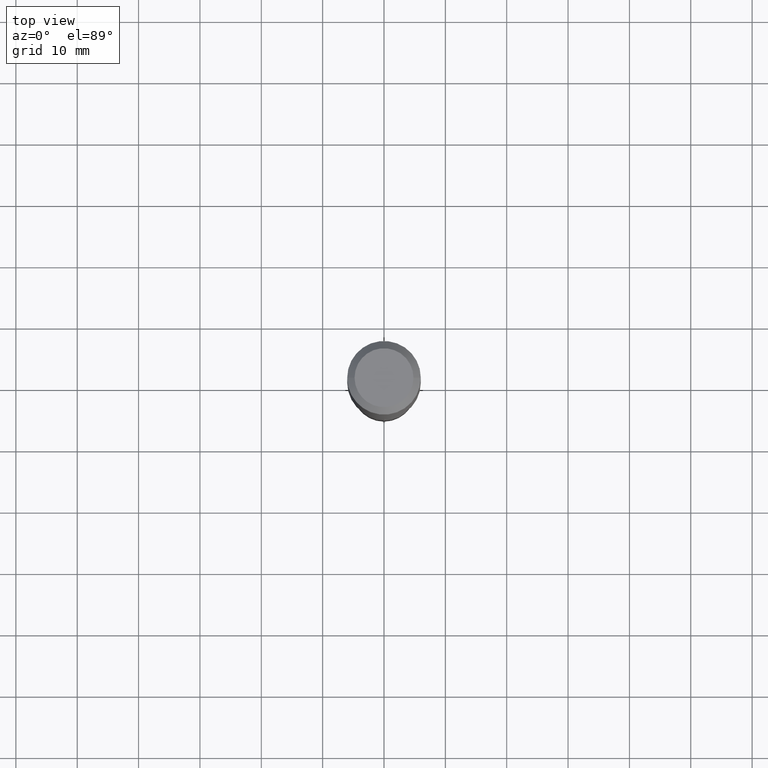
[diagram: clean part render]
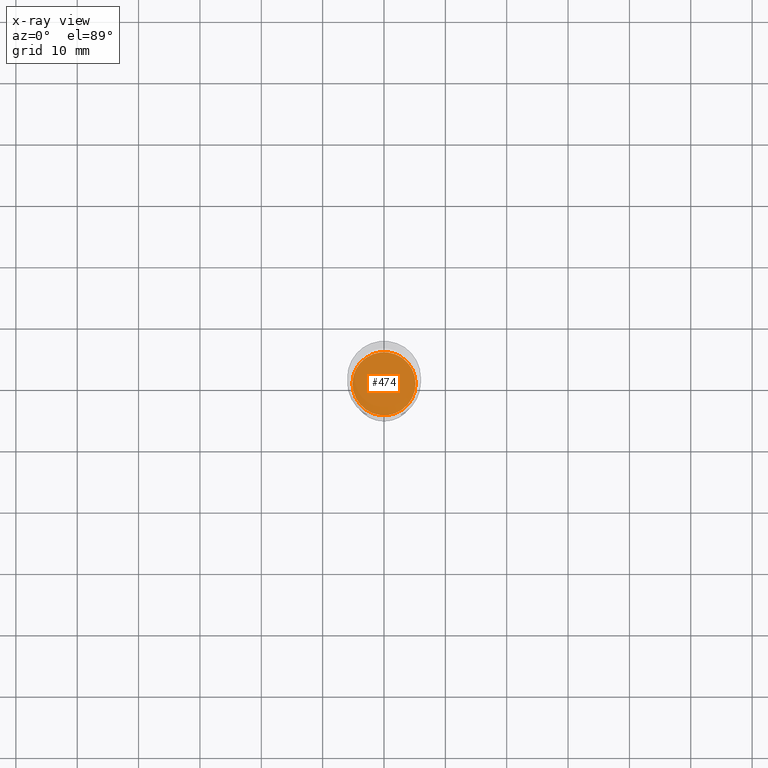
[diagram: x-ray — body ghosted, one internal face saturated and labeled with its STEP entity id]
A machine part, top view, then the same camera in x-ray: the body is ghosted and one INTERNAL B-rep face — a face not visible from any outside direction — is saturated and labeled: STEP entity #474.
In plain terms, the highlighted planar face has unit normal (-0, 0, 1).
Its self-contained STEP definition (entity closure, byte-faithful):
#15 = PLANE ( 'NONE',  #110 ) ;
#19 = CARTESIAN_POINT ( 'NONE',  ( -0.2026000000000000023, -6.438762868212672328E-15, -2.257199999999999207 ) ) ;
#39 = AXIS2_PLACEMENT_3D ( 'NONE', #452, #120, #270 ) ;
#58 = DIRECTION ( 'NONE',  ( -2.438088387897960049E-29, 3.491481338843145188E-15, 1.000000000000000000 ) ) ;
#63 = CARTESIAN_POINT ( 'NONE',  ( 7.645244535497741815E-29, -4.837374791906948055E-15, -2.257199999999999651 ) ) ;
#93 = EDGE_CURVE ( 'NONE', #300, #385, #313, .T. ) ;
#110 = AXIS2_PLACEMENT_3D ( 'NONE', #63, #58, #477 ) ;
#120 = DIRECTION ( 'NONE',  ( -2.445468806185136597E-29, 3.491481338843145583E-15, 1.000000000000000000 ) ) ;
#156 = DIRECTION ( 'NONE',  ( 1.000000000000000000, -6.982962677686261189E-15, 0.000000000000000000 ) ) ;
#251 = AXIS2_PLACEMENT_3D ( 'NONE', #453, #382, #156 ) ;
#260 = CIRCLE ( 'NONE', #39, 0.2026000000000000023 ) ;
#270 = DIRECTION ( 'NONE',  ( 1.000000000000000000, -6.982962677686261189E-15, 0.000000000000000000 ) ) ;
#300 = VERTEX_POINT ( 'NONE', #314 ) ;
#313 = CIRCLE ( 'NONE', #251, 0.2026000000000000023 ) ;
#314 = CARTESIAN_POINT ( 'NONE',  ( 0.2026000000000000023, -9.295719916535981924E-15, -2.257199999999999207 ) ) ;
#324 = FACE_OUTER_BOUND ( 'NONE', #359, .T. ) ;
#331 = ORIENTED_EDGE ( 'NONE', *, *, #93, .F. ) ;
#359 = EDGE_LOOP ( 'NONE', ( #331, #427 ) ) ;
#382 = DIRECTION ( 'NONE',  ( -2.445468806185136597E-29, 3.491481338843145583E-15, 1.000000000000000000 ) ) ;
#385 = VERTEX_POINT ( 'NONE', #19 ) ;
#418 = EDGE_CURVE ( 'NONE', #385, #300, #260, .T. ) ;
#427 = ORIENTED_EDGE ( 'NONE', *, *, #418, .F. ) ;
#452 = CARTESIAN_POINT ( 'NONE',  ( 5.519912189321088527E-29, -7.880971678036746522E-15, -2.257199999999999207 ) ) ;
#453 = CARTESIAN_POINT ( 'NONE',  ( 5.519912189321088527E-29, -7.880971678036746522E-15, -2.257199999999999207 ) ) ;
#474 = ADVANCED_FACE ( 'NONE', ( #324 ), #15, .F. ) ;
#477 = DIRECTION ( 'NONE',  ( 1.000000000000000000, -6.982962677686265922E-15, 4.876176775795935793E-29 ) ) ;